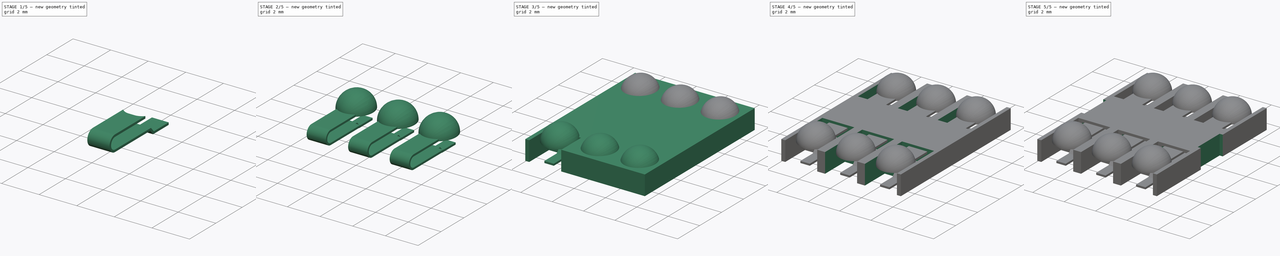
[diagram: build sequence overview — one tinted view per stage of 5, left to right]
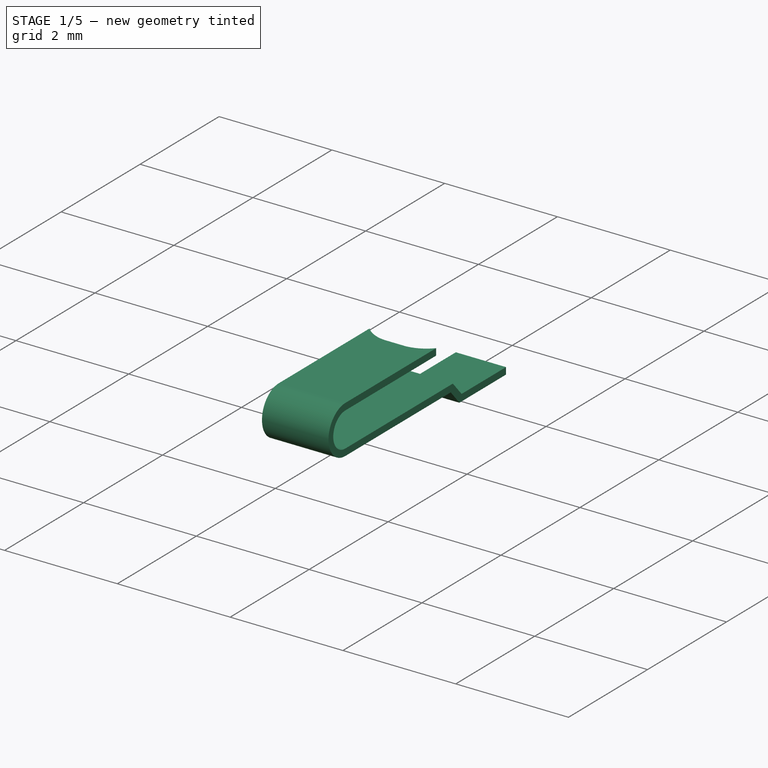
[diagram: stage 1 of 5 — iso view after this stage's code; geometry added in this stage tinted green]
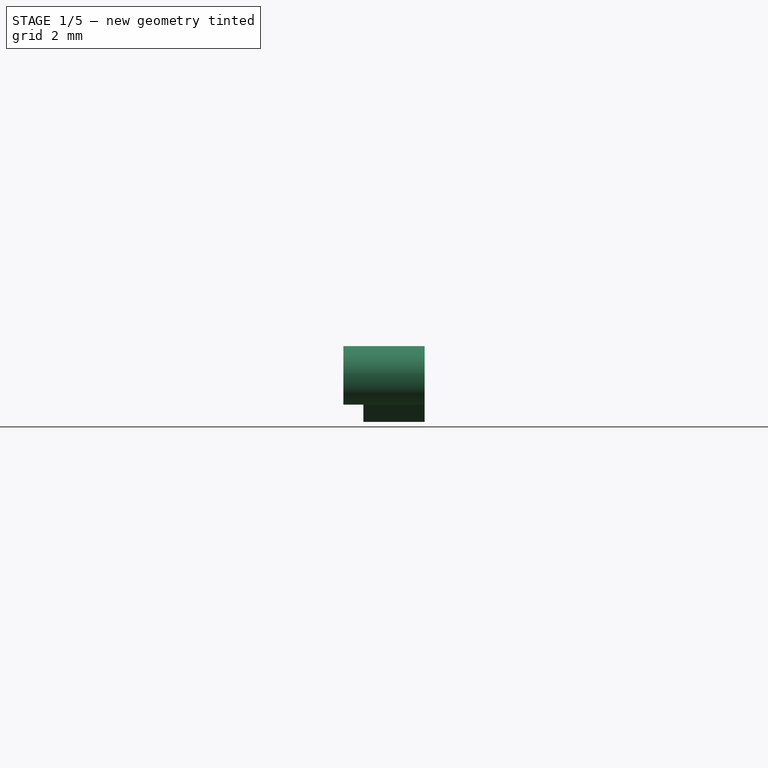
[diagram: stage 1 of 5 — front view after this stage's code; geometry added in this stage tinted green]
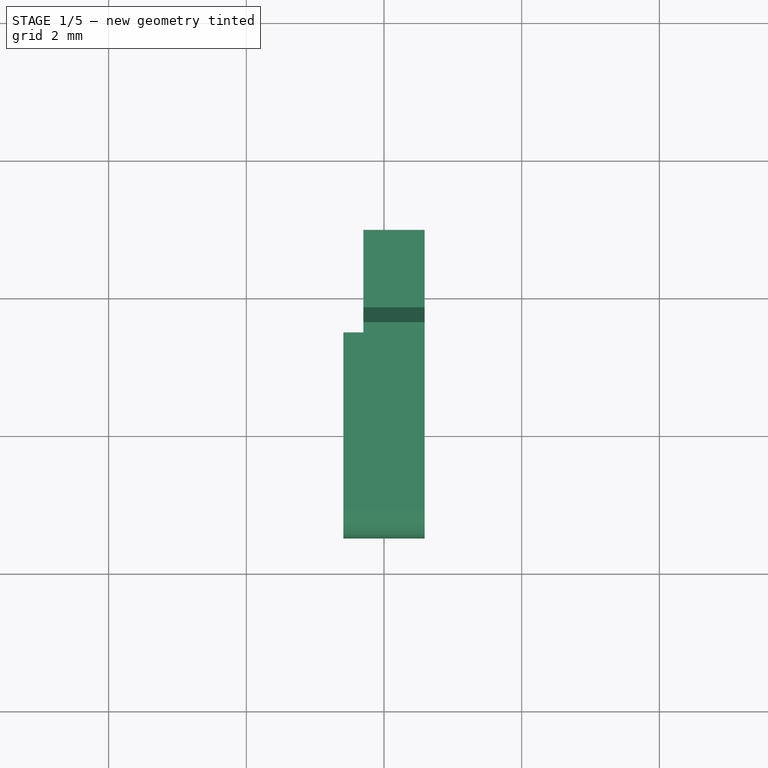
[diagram: stage 1 of 5 — top view after this stage's code; geometry added in this stage tinted green]
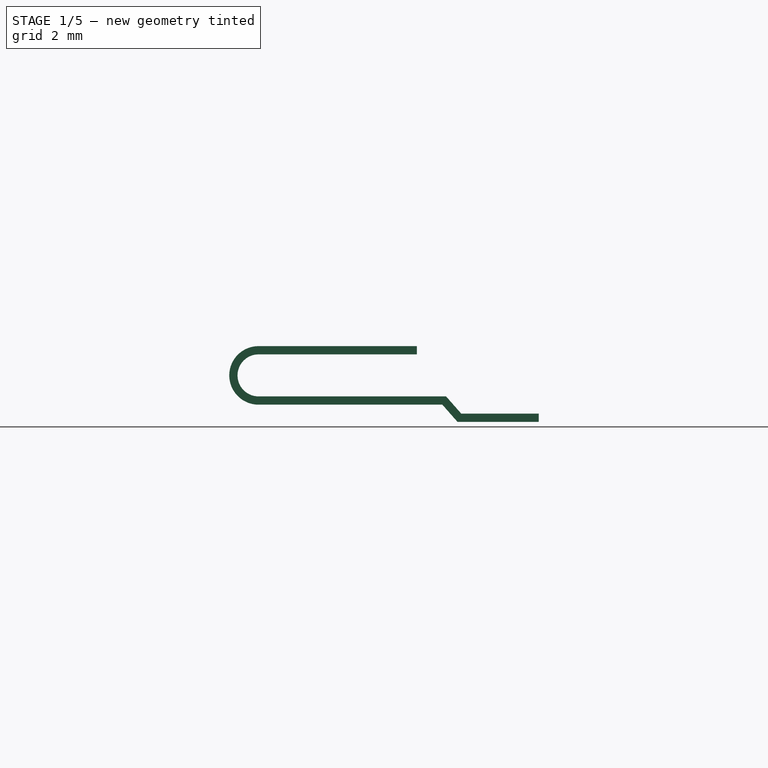
[diagram: stage 1 of 5 — right view after this stage's code; geometry added in this stage tinted green]
FCSTD DOCUMENT  (FreeCAD 1.0R38641 +468 (Git))
Label: 475500001
License: All rights reserved
objects: Sketcher::SketchObject×9, PartDesign::Mirrored×6, PartDesign::Pocket×5, PartDesign::Pad×3, PartDesign::LinearPattern×3, PartDesign::MultiTransform×3, PartDesign::Body×2, Spreadsheet::Sheet×1, PartDesign::Revolution×1, Part::FeaturePython×1, Part::Mirroring×1, Part::Compound×1
note: 73 computed .brp shape members not serialized (recipe doc carries the construction recipe); baked Part::Feature solids carry a one-line shape summary decoded from their .brp

FEATURE [PartDesign::Body] Body
  AllowCompound = false
  Group = -> [Sketch,Pad,Sketch001,Pocket,MultiTransform,LinearPattern,Mirrored,Sketch002,Pocket001,MultiTransform001,LinearPattern001,Mirrored001,Sketch003,Pocket002,MultiTransform002,LinearPattern002,Mirrored002,Sketch005,Pocket003,Mirrored003]
  Origin = -> Origin
  Placement = pos=(0,0,0.05) rot=(0,0,1;0rad)
  Tip = -> Mirrored003
FEATURE [Sketcher::SketchObject] Sketch006
  ArcFitTolerance = 0
  AttachmentSupport = -> [XY_Plane001]
  FullyConstrained = true
  MakeInternals = false
  MapMode = 5
  expr: Constraints[13] = <<Master>>.thick
  expr: Constraints[6] = <<Master>>.opening
  sketch-geometry (21):
    g0: ArcOfEllipse CenterX=0 CenterY=0 CenterZ=0 NormalX=0 NormalY=0 NormalZ=1 MajorRadius=1.09 MinorRadius=1.02 AngleXU=-1.5708 StartAngle=0 EndAngle=3.14159
    g1: LineSegment [constr] StartX=0 StartY=-1.09 StartZ=0 EndX=0 EndY=1.09 EndZ=0
    g2: LineSegment [constr] StartX=1.02 StartY=0 StartZ=0 EndX=-1.02 EndY=0 EndZ=0
    g3: GeomPoint [constr] X=0 Y=-0.384318 Z=0
    g4: GeomPoint [constr] X=0 Y=0.384318 Z=0
    g5: LineSegment StartX=1e-16 StartY=-1.09 StartZ=0 EndX=1e-16 EndY=-0.97 EndZ=0
    g6: LineSegment StartX=0 StartY=0.97 StartZ=0 EndX=0 EndY=1.09 EndZ=0
    g7: LineSegment [constr] StartX=0.9 StartY=0 StartZ=0 EndX=1.02 EndY=0 EndZ=0
    g8: LineSegment [constr] StartX=0 StartY=0.97 StartZ=0 EndX=0.9 EndY=0.97 EndZ=0
    g9: LineSegment [constr] StartX=0.9 StartY=0.97 StartZ=0 EndX=0.9 EndY=0 EndZ=0
    g10: LineSegment [constr] StartX=0.9 StartY=0 StartZ=0 EndX=0.9 EndY=-0.97 EndZ=0
    g11: LineSegment [constr] StartX=1e-16 StartY=-0.97 StartZ=0 EndX=0.9 EndY=-0.97 EndZ=0
    g12: BSplineCurve PolesCount=5 KnotsCount=3 Degree=2 IsPeriodic=0
    g13-g17: Circle [constr] x5 (B-spline internal-alignment scaffolding for g12; pole/knot coordinates omitted)
    g18: GeomPoint [constr] X=0 Y=0.97 Z=0
    g19: GeomPoint [constr] X=0.9 Y=0 Z=0
    g20: GeomPoint [constr] X=0 Y=-0.97 Z=0
  constraints (44):
    c: InternalAlignment(g1-g4 -> g0) x4
    c: Vertical(g1)
    c: DistanceY(g1,g1) = 2.18
    c: DistanceX(g2,g2) = 2.04
    c: Coincident(g5,g0)
    c: Coincident(g6,g0)
    c: Vertical(g6)
    c: Vertical(g5)
    c: Coincident(g7,g2)
    c: Equal(g7,g5)
    c: DistanceY(g6,g6) = 0.12
    c: PointOnObject(g0,g-2)
    c: PointOnObject(g0,g-2)
    c: Coincident(g8,g6)
    c: Horizontal(g8)
    c: Coincident(g9,g8)
    c: Coincident(g9,g7)
    c: Coincident(g10,g7)
    c: Coincident(g11,g5)
    c: Coincident(g11,g10)
    c: Vertical(g9)
    c: Vertical(g10)
    c: Horizontal(g11)
    c: Horizontal(g7)
    c: Equal(g9,g10)
    c: Coincident(g0,g-1)
    c: InternalAlignment(g13,g12)
    c: Weight(g13) = 1
    c: InternalAlignment(g14,g12)
    c: InternalAlignment(g15,g12)
    c: Equal(g15,g13)
    c: InternalAlignment(g16,g12)
    c: InternalAlignment(g17,g12)
    c: Equal(g17,g13)
    c: InternalAlignment(g18,g12)
    c: InternalAlignment(g19,g12)
    c: InternalAlignment(g20,g12)
    c: Coincident(g15,g7)
    c: Coincident(g14,g8)
    c: Coincident(g12,g6)
    c: Coincident(g16,g10)
    c: Coincident(g12,g5)
    c: Equal(g16,g14)
    c: Weight(g14) = 0.707
FEATURE [Sketcher::SketchObject] Sketch007
  ArcFitTolerance = 0
  AttachmentSupport = -> [YZ_Plane001]
  FullyConstrained = true
  MakeInternals = false
  MapMode = 5
  Placement = pos=(0,0,0) rot=(0.57735,0.57735,0.57735;2.0944rad)
  expr: Constraints[17] = <<Master>>.thick
  expr: Constraints[40] = <<Master>>.bottom + <<Master>>.thick
  sketch-geometry (19):
    g0: LineSegment StartX=-0.97 StartY=0.12 StartZ=0 EndX=-3.07 EndY=0.12 EndZ=0
    g1: ArcOfCircle CenterX=-3.07 CenterY=-0.305 CenterZ=0 NormalX=0 NormalY=0 NormalZ=1 AngleXU=0 Radius=0.425 StartAngle=1.5708 EndAngle=4.71239
    g2: LineSegment StartX=-3.07 StartY=-0.73 StartZ=0 EndX=-0.4 EndY=-0.73 EndZ=0
    g3: LineSegment StartX=-0.4 StartY=-0.73 StartZ=0 EndX=-0.18 EndY=-0.98 EndZ=0
    g4: LineSegment StartX=-0.18 StartY=-0.98 StartZ=0 EndX=1 EndY=-0.98 EndZ=0
    g5: LineSegment StartX=1 StartY=-0.98 StartZ=0 EndX=1 EndY=-0.86 EndZ=0
    g6: LineSegment StartX=1 StartY=-0.86 StartZ=0 EndX=-0.125752 EndY=-0.86 EndZ=0
    g7: LineSegment StartX=-0.125752 StartY=-0.86 StartZ=0 EndX=-0.345752 EndY=-0.61 EndZ=0
    g8: LineSegment StartX=-0.345752 StartY=-0.61 StartZ=0 EndX=-3.07 EndY=-0.61 EndZ=0
    g9: LineSegment StartX=-3.07 StartY=0 StartZ=0 EndX=-0.97 EndY=0 EndZ=0
    g10: LineSegment StartX=-0.97 StartY=0 StartZ=0 EndX=-0.97 EndY=0.12 EndZ=0
    g11: ArcOfCircle CenterX=-3.07 CenterY=-0.305 CenterZ=0 NormalX=0 NormalY=0 NormalZ=1 AngleXU=0 Radius=0.305 StartAngle=1.5708 EndAngle=4.71239
    g12: LineSegment [constr] StartX=-0.125752 StartY=-0.86 StartZ=0 EndX=-0.125752 EndY=-0.98 EndZ=0
    g13: LineSegment [constr] StartX=-0.4 StartY=-0.73 StartZ=0 EndX=-0.309914 EndY=-0.650725 EndZ=0
    g14: LineSegment [constr] StartX=-3.07 StartY=-0.61 StartZ=0 EndX=-3.07 EndY=-0.73 EndZ=0
    g15: LineSegment [constr] StartX=-3.07 StartY=0 StartZ=0 EndX=-3.07 EndY=0.12 EndZ=0
    g16: LineSegment [constr] StartX=-3.07 StartY=0 StartZ=0 EndX=-3.07 EndY=-0.305 EndZ=0
    g17: LineSegment [constr] StartX=-3.07 StartY=-0.305 StartZ=0 EndX=-3.07 EndY=-0.61 EndZ=0
    g18: LineSegment [constr] StartX=-3.07 StartY=-0.305 StartZ=0 EndX=-3.495 EndY=-0.305 EndZ=0
  constraints (54):
    c: Horizontal(g0)
    c: Coincident(g1,g0)
    c: Horizontal(g2)
    c: Coincident(g2,g3)
    c: Coincident(g3,g4)
    c: Horizontal(g4)
    c: Coincident(g4,g5)
    c: Coincident(g5,g6)
    c: Horizontal(g6)
    c: Coincident(g6,g7)
    c: Coincident(g7,g8)
    c: Horizontal(g8)
    c: Horizontal(g9)
    c: Coincident(g9,g10)
    c: Coincident(g10,g0)
    c: Vertical(g10)
    c: Vertical(g5)
    c: DistanceY(g5,g5) = 0.12
    c: Coincident(g11,g9)
    c: Coincident(g11,g8)
    c: Coincident(g12,g6)
    c: PointOnObject(g12,g4)
    c: Vertical(g12)
    c: Coincident(g13,g2)
    c: PointOnObject(g13,g7)
    c: Equal(g12,g13)
    c: Parallel(g3,g7)
    c: Coincident(g1,g2)
    c: Coincident(g14,g8)
    c: Coincident(g14,g1)
    c: Vertical(g14)
    c: Equal(g13,g14)
    c: Coincident(g11,g1)
    c: Coincident(g15,g9)
    c: Coincident(g15,g0)
    c: Vertical(g15)
    c: Equal(g15,g14)
    c: PointOnObject(g9,g-1)
    c: DistanceY(g1,g0) = 0.85
    c: DistanceX(g3,g4) = 1.18
    c: DistanceY(g3,g0) = 1.1
    c: Coincident(g16,g9)
    c: Coincident(g16,g1)
    c: Vertical(g16)
    c: Coincident(g17,g1)
    c: Coincident(g17,g8)
    c: Perpendicular(g3,g13)
    c: DistanceX(g0,g0) = 2.1
    c: DistanceX(g0,g-1) = 0.97
    c: Coincident(g18,g1)
    c: PointOnObject(g18,g1)
    c: Horizontal(g18)
    c: DistanceX(g18,g2) = 3.095
    c: DistanceX(g18,g4) = 4.495
FEATURE [PartDesign::Pad] Pad001
  Direction = (1,0,0)
  Length = 0.59
  Length2 = 0.59
  Placement = pos=(0,0,0) rot=(1,1,1;2.0944rad)
  Profile = -> Sketch007
  ReferenceAxis = -> Sketch007 [N_Axis]
  Suppressed = false
  Type = 4
  expr: Length = <<Master>>.pin_width / 2
  expr: Length2 = <<Master>>.pin_width / 2
FEATURE [Sketcher::SketchObject] Sketch008
  ArcFitTolerance = 0
  AttachmentSupport = -> [XY_Plane001]
  FullyConstrained = true
  MakeInternals = false
  MapMode = 5
  expr: Constraints[8] = <<Master>>.pin_width / 2
  sketch-geometry (3):
    g0: LineSegment StartX=-0.59 StartY=-0.77 StartZ=0 EndX=-0.59 EndY=-0.97 EndZ=0
    g1: LineSegment StartX=-0.59 StartY=-0.97 StartZ=0 EndX=-0.19 EndY=-0.97 EndZ=0
    g2: ArcOfCircle CenterX=-0.141002 CenterY=-0.372004 CenterZ=0 NormalX=0 NormalY=0 NormalZ=1 AngleXU=0 Radius=0.6 StartAngle=3.86685 EndAngle=4.63063
  constraints (10):
    c: Vertical(g0)
    c: Coincident(g1,g0)
    c: Horizontal(g1)
    c: Coincident(g2,g0)
    c: Coincident(g2,g1)
    c: DistanceY(g0,g0) = 0.2
    c: DistanceX(g1,g1) = 0.4
    c: Radius(g2) = 0.6
    c: DistanceX(g0,g-1) = 0.59
    c: DistanceY(g0,g-1) = 0.97
FEATURE [PartDesign::Pad] Pad002
  BaseFeature = -> Pad001
  Direction = (0,0,1)
  Length = 0.12
  Length2 = 10
  Placement = pos=(0,0,0) rot=(1,1,1;2.0944rad)
  Profile = -> Sketch008
  ReferenceAxis = -> Sketch008 [N_Axis]
  Suppressed = false
  Type = 0
  expr: Length = <<Master>>.thick
FEATURE [PartDesign::Mirrored] Mirrored004
  BaseFeature = -> Pad002
  MirrorPlane = -> Sketch008 [V_Axis]
  Originals = -> [Pad002]
  Placement = pos=(0,0,0) rot=(1,1,1;2.0944rad)
  Suppressed = false
  TransformMode = 0
FEATURE [Sketcher::SketchObject] Sketch009
  ArcFitTolerance = 0
  AttachmentSupport = -> [XY_Plane001]
  FullyConstrained = true
  MakeInternals = false
  MapMode = 5
  expr: Constraints[11] = <<Master>>.pin_width / 2
  sketch-geometry (4):
    g0: LineSegment StartX=-0.59 StartY=1 StartZ=0 EndX=-0.3 EndY=1 EndZ=0
    g1: LineSegment StartX=-0.3 StartY=1 StartZ=0 EndX=-0.3 EndY=-0.495 EndZ=0
    g2: LineSegment StartX=-0.3 StartY=-0.495 StartZ=0 EndX=-0.59 EndY=-0.495 EndZ=0
    g3: LineSegment StartX=-0.59 StartY=-0.495 StartZ=0 EndX=-0.59 EndY=1 EndZ=0
  constraints (12):
    c: Coincident(g0,g1)
    c: Coincident(g1,g2)
    c: Coincident(g2,g3)
    c: Coincident(g3,g0)
    c: Horizontal(g0)
    c: Horizontal(g2)
    c: Vertical(g1)
    c: Vertical(g3)
    c: DistanceY(g3,g3) = 1.495
    c: DistanceX(g0,g0) = 0.29
    c: DistanceY(g1,g-1) = 0.495
    c: DistanceX(g0,g-1) = 0.59
FEATURE [PartDesign::Pocket] Pocket004
  BaseFeature = -> Mirrored004
  Direction = (0,0,-1)
  Length = 5
  Length2 = 5
  Placement = pos=(0,0,0) rot=(1,1,1;2.0944rad)
  Profile = -> Sketch009
  ReferenceAxis = -> Sketch009 [N_Axis]
  Suppressed = false
  Type = 1
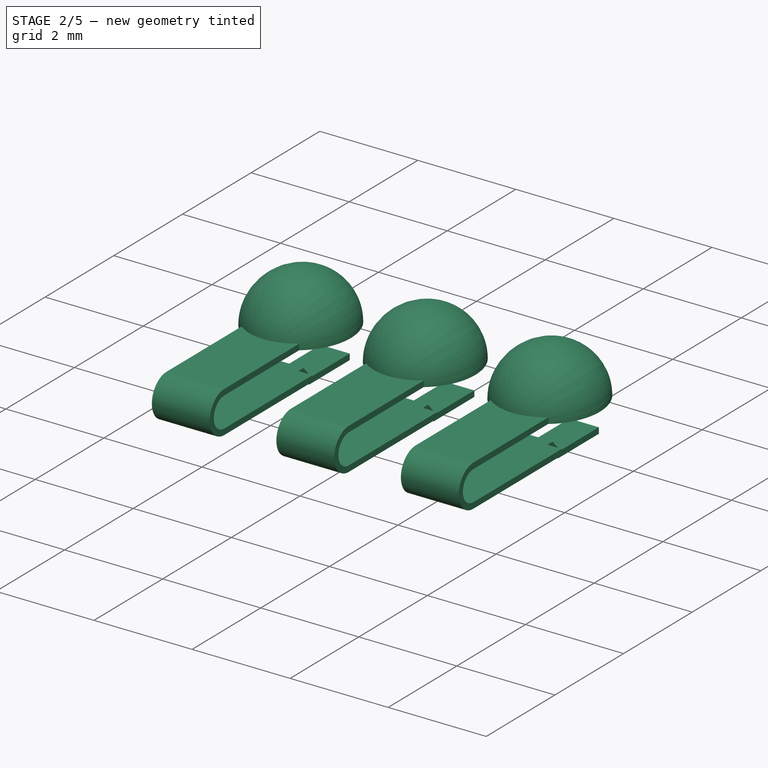
[diagram: stage 2 of 5 — iso view after this stage's code; geometry added in this stage tinted green]
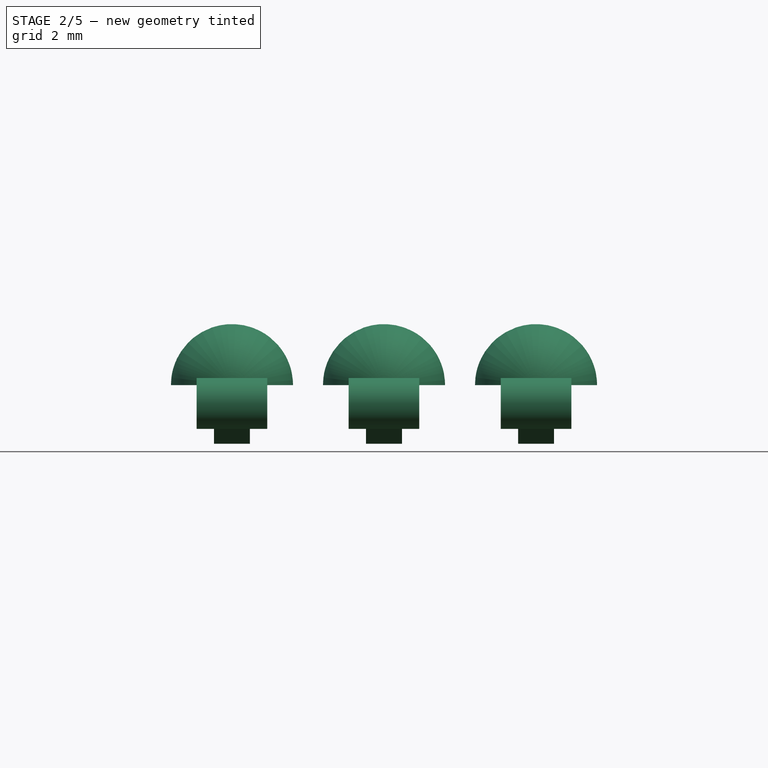
[diagram: stage 2 of 5 — front view after this stage's code; geometry added in this stage tinted green]
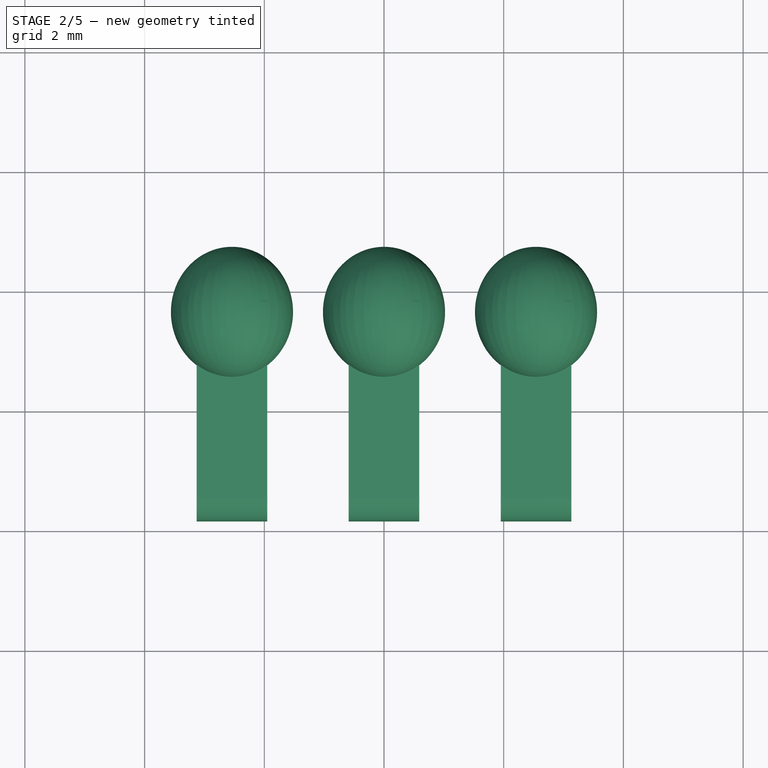
[diagram: stage 2 of 5 — top view after this stage's code; geometry added in this stage tinted green]
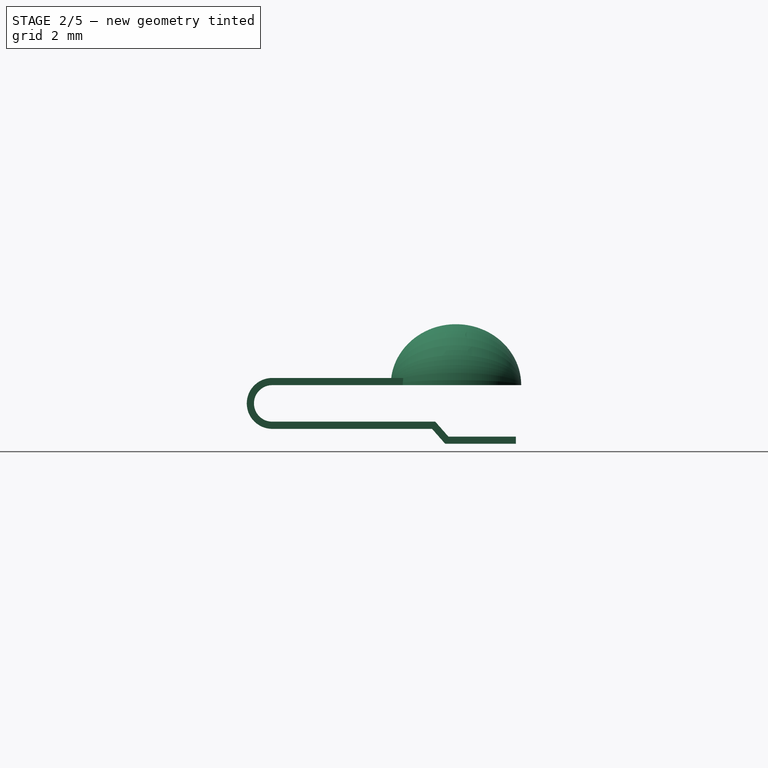
[diagram: stage 2 of 5 — right view after this stage's code; geometry added in this stage tinted green]
FEATURE [PartDesign::Mirrored] Mirrored005
  BaseFeature = -> Pocket004
  MirrorPlane = -> Sketch009 [V_Axis]
  Originals = -> [Pocket004]
  Placement = pos=(0,0,0) rot=(1,1,1;2.0944rad)
  Suppressed = false
  TransformMode = 0
FEATURE [PartDesign::Revolution] Revolution
  AllowMultiFace = false
  Angle = 180
  Angle2 = 60
  Axis = (0,1,0)
  Base = (0,0,0)
  BaseFeature = -> Mirrored005
  Placement = pos=(0,0,0) rot=(1,1,1;2.0944rad)
  Profile = -> Sketch006
  ReferenceAxis = -> Sketch006 [V_Axis]
  Refine = true
  Reversed = true
  Suppressed = false
  Type = 0
FEATURE [PartDesign::Body] Body001
  AllowCompound = false
  Group = -> [Sketch007,Pad001,Sketch008,Pad002,Mirrored004,Sketch006,Sketch009,Pocket004,Mirrored005,Revolution]
  Origin = -> Origin001
  Tip = -> Revolution
FEATURE [Part::FeaturePython] Array  # Draft array (typed FeaturePython)
  AlwaysSyncPlacement = false
  Angle = 360
  ArrayType = 0
  Axis = (0,0,1)
  Base = -> Body001
  Center = (0,0,0)
  Count = 3
  ExpandArray = false
  Fuse = false
  IntervalAxis = (0,0,0)
  IntervalX = (2.54,0,0)
  IntervalY = (0,100,0)
  IntervalZ = (0,0,100)
  NumberCircles = 3
  NumberPolar = 5
  NumberX = 3
  NumberY = 1
  NumberZ = 1
  Placement = pos=(-2.54,3.65,0.98) rot=(0,0,1;0rad)
  PlacementList = 3 placements: arithmetic series from (0,0,0) step (2.54,0,0) to (5.08,0,0)
  RadialDistance = 50
  ScaleList = (3) [(1,1,1),(1,1,1),(1,1,1)]
  Symmetry = 1
  TangentialDistance = 25
  expr: .Placement.Base.x = -<<Master>>.pin_spacing
  expr: .Placement.Base.z = <<Master>>.bottom
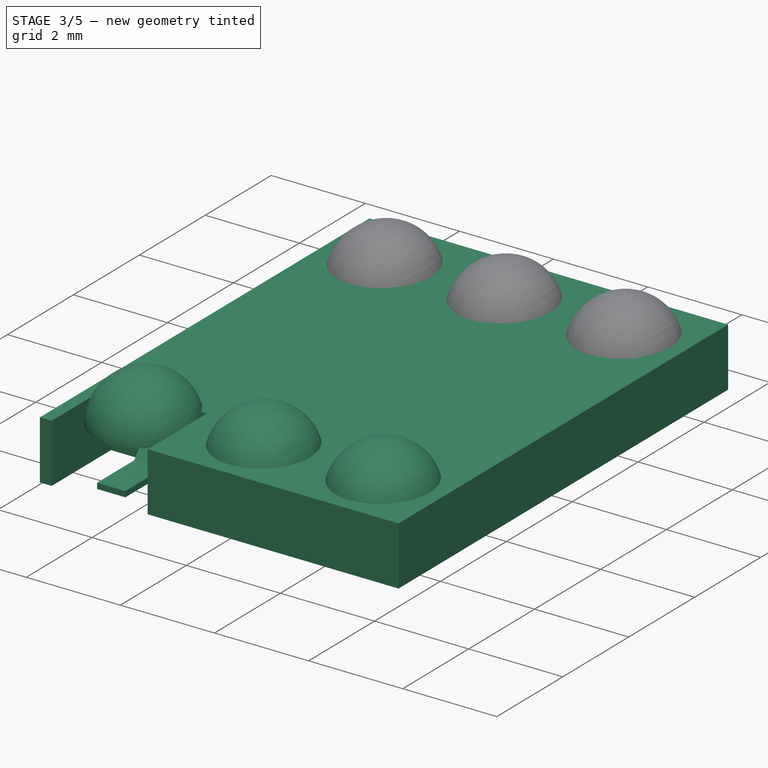
[diagram: stage 3 of 5 — iso view after this stage's code; geometry added in this stage tinted green]
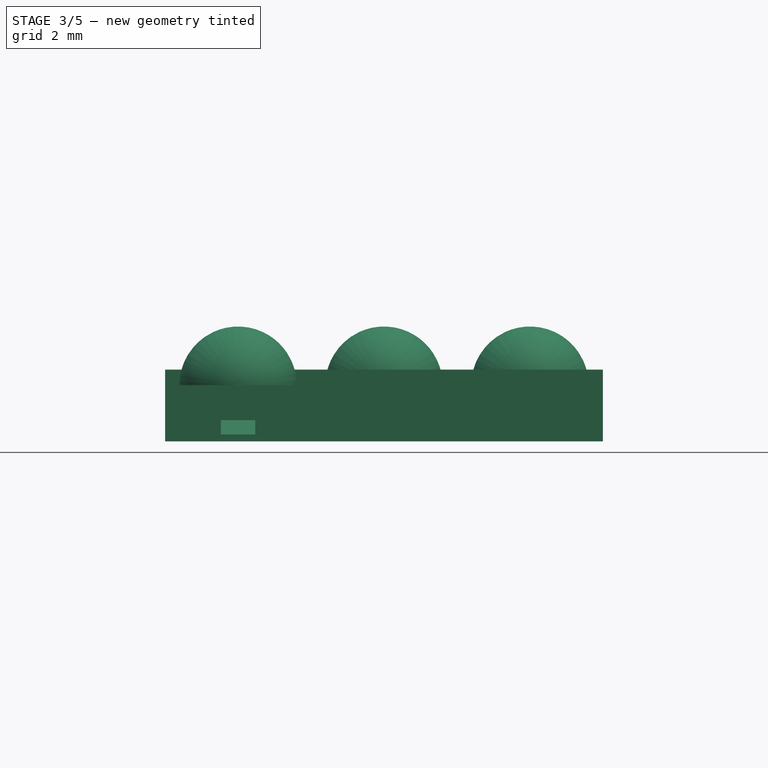
[diagram: stage 3 of 5 — front view after this stage's code; geometry added in this stage tinted green]
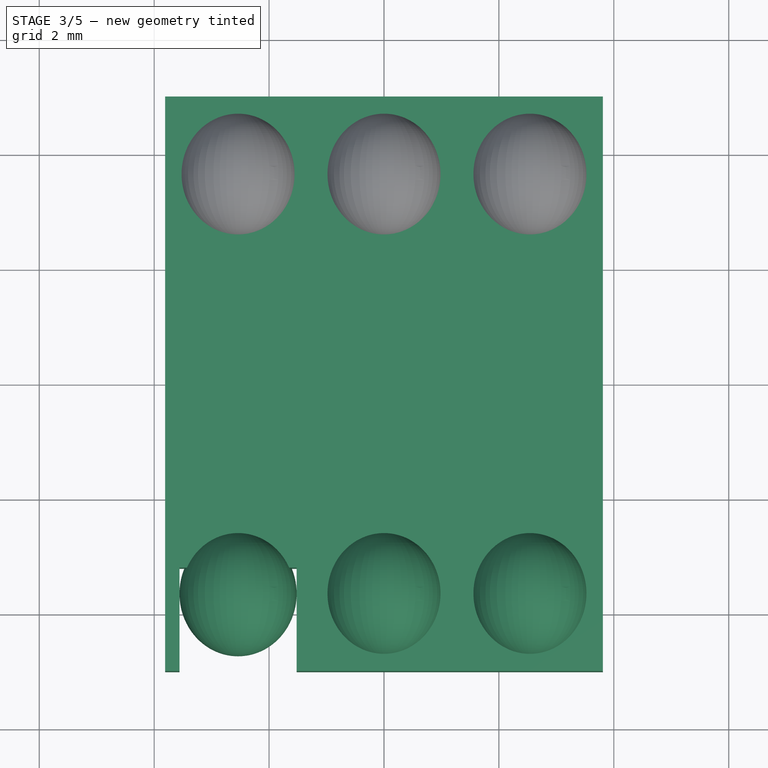
[diagram: stage 3 of 5 — top view after this stage's code; geometry added in this stage tinted green]
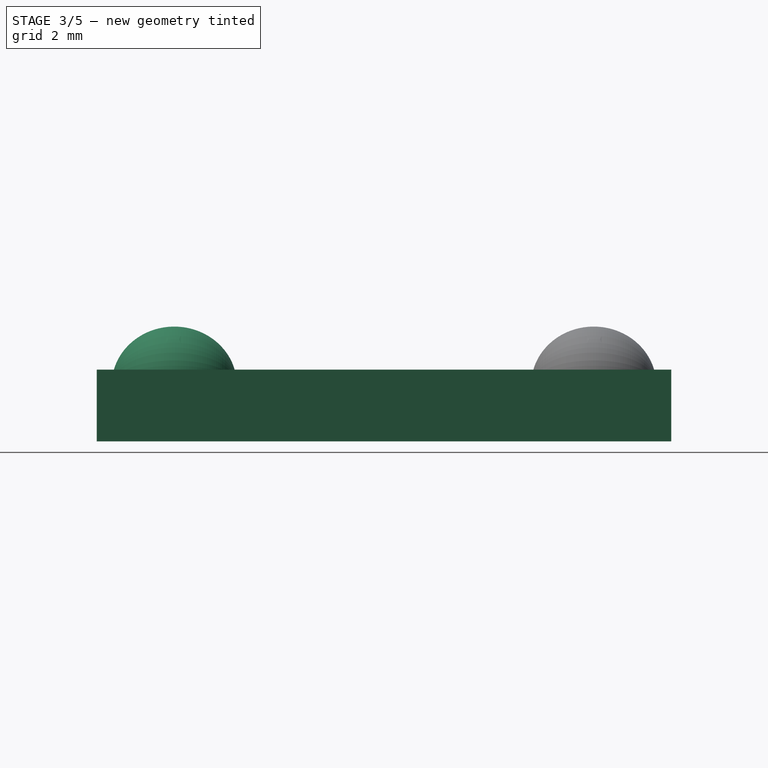
[diagram: stage 3 of 5 — right view after this stage's code; geometry added in this stage tinted green]
FEATURE [Spreadsheet::Sheet] Spreadsheet  label="Master"
  cells = A1='Body Constants; A2='length; B2(length)==10 mm; C2='Length of housing; A3='height; B3(height)==1.25 mm; C3='Height of housing; A4='width; B4(width)==7.62 mm; C4='Width of housing; A6='pins; B6(pins)=6; C6='Number of pins; A7='pin_spacing; B7(pin_spacing)==2.54 mm; C7='Pin spacing; A8='opening; B8(opening)==2.04 mm; C8='Pin opening; A10='Pin Constants; A11='pin_width; B11(pin_width)==0.59 mm * 2; C11='Width of pin; A12='thick; B12(thick)==0.12 mm; C12='Pin thickness; A13='bottom; B13(bottom)==1.1 mm - thick; C13='Pin bottom offset; A16='Calculated; A17='pins_per_side; B17(pins_per_side)==pins / 2; C17='Pins per side; A18='pin_pat_len; B18(pin_pat_len)==pin_spacing * (pins_per_side - 1); C18='Pin linear pattern length; A19='offset; B19(offset)==(width - pin_spacing * (pins_per_side - 1) - opening) / 2; C19='Pin opening offset from edge
FEATURE [PartDesign::Mirrored] Mirrored002
  MirrorPlane = -> XZ_Plane
  Suppressed = false
  TransformMode = 0
FEATURE [Sketcher::SketchObject] Sketch
  ArcFitTolerance = 0
  AttachmentSupport = -> [XY_Plane]
  FullyConstrained = true
  MakeInternals = false
  MapMode = 5
  expr: Constraints[6] = <<Master>>.width
  expr: Constraints[7] = <<Master>>.length
  sketch-geometry (4):
    g0: LineSegment StartX=-3.81 StartY=5 StartZ=0 EndX=3.81 EndY=5 EndZ=0
    g1: LineSegment StartX=3.81 StartY=5 StartZ=0 EndX=3.81 EndY=-5 EndZ=0
    g2: LineSegment StartX=3.81 StartY=-5 StartZ=0 EndX=-3.81 EndY=-5 EndZ=0
    g3: LineSegment StartX=-3.81 StartY=-5 StartZ=0 EndX=-3.81 EndY=5 EndZ=0
  constraints (10):
    c: Coincident(g0,g1)
    c: Coincident(g1,g2)
    c: Coincident(g2,g3)
    c: Coincident(g3,g0)
    c: Horizontal(g0)
    c: Vertical(g3)
    c: DistanceX(g2,g2) = 7.62
    c: DistanceY(g1,g1) = 10
    c: Symmetric(g0,g1,g-1)
    c: Symmetric(g2,g1,g-2)
FEATURE [PartDesign::Pad] Pad
  Direction = (0,0,1)
  Length = 1.25
  Length2 = 10
  Profile = -> Sketch
  ReferenceAxis = -> Sketch [N_Axis]
  Suppressed = false
  Type = 0
  expr: Length = <<Master>>.height
FEATURE [Sketcher::SketchObject] Sketch001
  ArcFitTolerance = 0
  AttachmentSupport = -> [XY_Plane]
  ExternalGeometry = -> [Pad]
  FullyConstrained = true
  MakeInternals = false
  MapMode = 5
  expr: Constraints[10] = <<Master>>.width / 2
  expr: Constraints[11] = <<Master>>.length / 2
  expr: Constraints[12] = <<Master>>.offset
  expr: Constraints[14] = <<Master>>.opening
  sketch-geometry (5):
    g0: LineSegment StartX=-3.56 StartY=-3.2 StartZ=0 EndX=-1.52 EndY=-3.2 EndZ=0
    g1: LineSegment StartX=-1.52 StartY=-3.2 StartZ=0 EndX=-1.52 EndY=-5 EndZ=0
    g2: LineSegment StartX=-1.52 StartY=-5 StartZ=0 EndX=-3.56 EndY=-5 EndZ=0
    g3: LineSegment StartX=-3.56 StartY=-5 StartZ=0 EndX=-3.56 EndY=-3.2 EndZ=0
    g4: LineSegment [constr] StartX=-3.56 StartY=-5 StartZ=0 EndX=-3.81 EndY=-5 EndZ=0
  constraints (15):
    c: Coincident(g0,g1)
    c: Coincident(g1,g2)
    c: Coincident(g2,g3)
    c: Coincident(g3,g0)
    c: Horizontal(g0)
    c: Horizontal(g2)
    c: Vertical(g1)
    c: Vertical(g3)
    c: Coincident(g4,g2)
    c: Horizontal(g4)
    c: DistanceX(g4,g-1) = 3.81
    c: DistanceY(g4,g-1) = 5
    c: DistanceX(g4,g4) = 0.25
    c: DistanceY(g1,g1) = 1.8
    c: DistanceX(g2,g2) = 2.04
FEATURE [PartDesign::LinearPattern] LinearPattern
  Direction = -> Sketch001 [H_Axis]
  Length = 5.08
  Mode = 0
  Occurrences = 3
  Offset = 2.54
  Suppressed = false
  TransformMode = 0
  expr: Length = <<Master>>.pin_pat_len
  expr: Occurrences = <<Master>>.pins_per_side
FEATURE [PartDesign::Mirrored] Mirrored
  MirrorPlane = -> Sketch001 [H_Axis]
  Suppressed = false
  TransformMode = 0
FEATURE [PartDesign::Pocket] Pocket
  BaseFeature = -> Pad
  Direction = (0,0,-1)
  Length = 5
  Length2 = 5
  Profile = -> Sketch001
  ReferenceAxis = -> Sketch001 [N_Axis]
  Reversed = true
  Suppressed = false
  Type = 1
FEATURE [Part::Mirroring] Part__Mirroring  label="Array (Mirror #1)"
  Base = (0,0,0)
  Normal = (0,1,0)
  Source = -> Array
FEATURE [Part::Compound] Compound
  Links = -> [Part__Mirroring,Array]
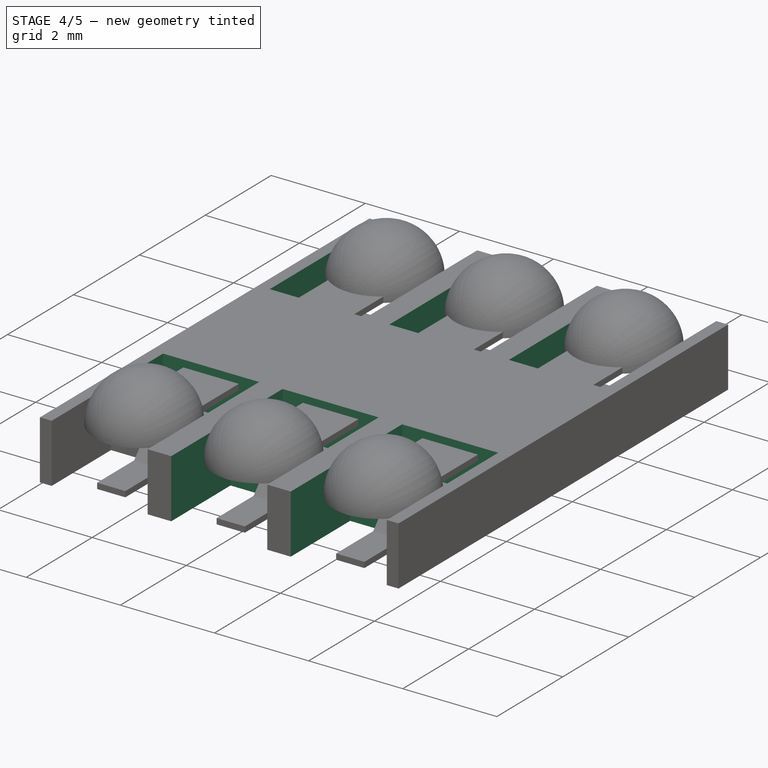
[diagram: stage 4 of 5 — iso view after this stage's code; geometry added in this stage tinted green]
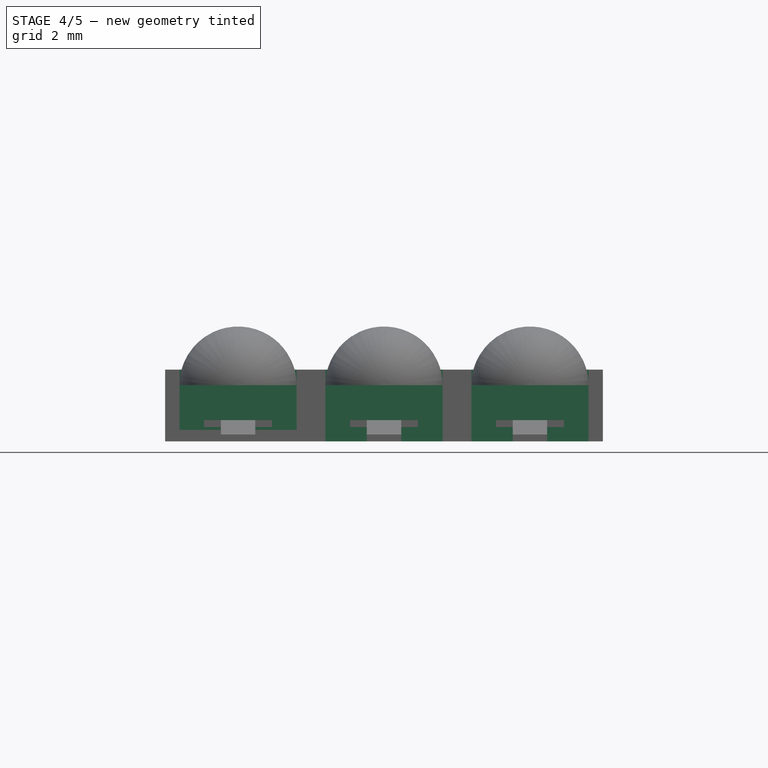
[diagram: stage 4 of 5 — front view after this stage's code; geometry added in this stage tinted green]
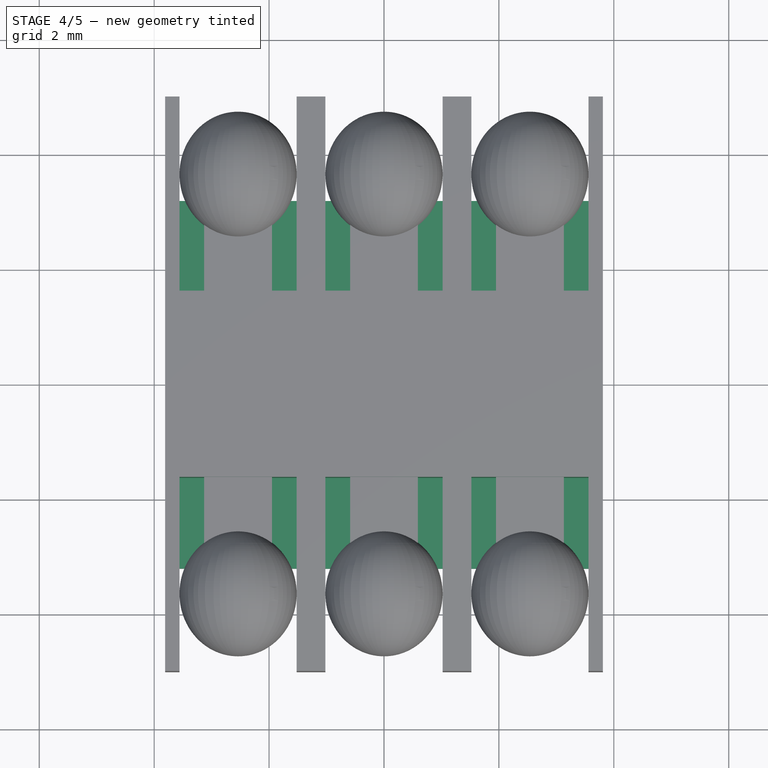
[diagram: stage 4 of 5 — top view after this stage's code; geometry added in this stage tinted green]
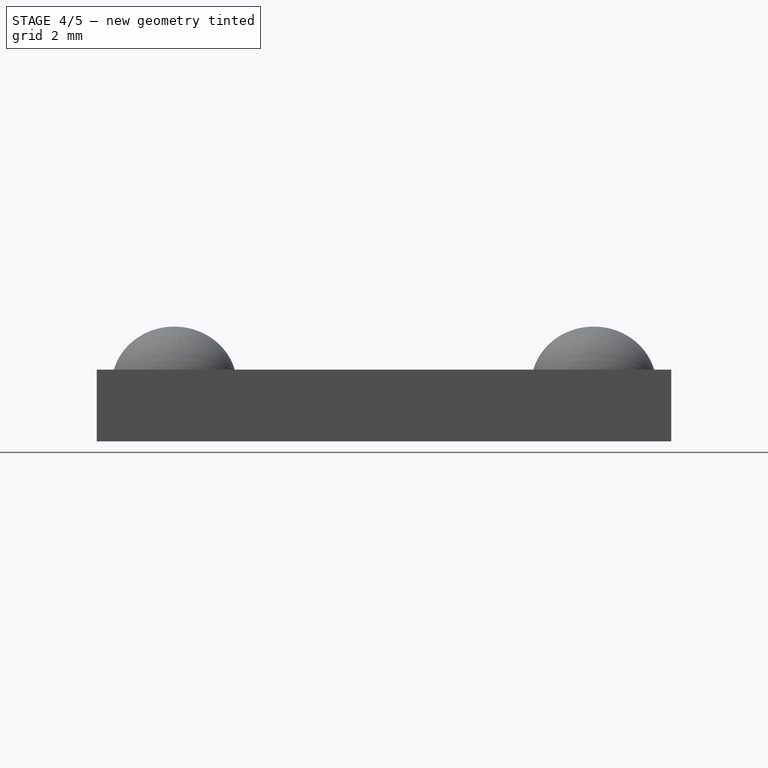
[diagram: stage 4 of 5 — right view after this stage's code; geometry added in this stage tinted green]
FEATURE [PartDesign::MultiTransform] MultiTransform
  BaseFeature = -> Pocket
  Originals = -> [Pocket]
  Suppressed = false
  TransformMode = 0
  Transformations = -> [LinearPattern,Mirrored]
FEATURE [Sketcher::SketchObject] Sketch002
  ArcFitTolerance = 0
  AttachmentOffset = pos=(0,0,1.25) rot=(0,0,1;0rad)
  AttachmentSupport = -> [XY_Plane]
  FullyConstrained = true
  MakeInternals = false
  MapMode = 5
  Placement = pos=(0,0,1.25) rot=(0,0,1;0rad)
  expr: .AttachmentOffset.Base.z = <<Master>>.height
  expr: Constraints[10] = <<Master>>.length / 2
  expr: Constraints[11] = <<Master>>.offset
  expr: Constraints[12] = <<Master>>.opening
  expr: Constraints[9] = <<Master>>.width / 2
  sketch-geometry (5):
    g0: LineSegment [constr] StartX=-3.81 StartY=-5 StartZ=0 EndX=-3.56 EndY=-5 EndZ=0
    g1: LineSegment StartX=-3.56 StartY=-5 StartZ=0 EndX=-1.52 EndY=-5 EndZ=0
    g2: LineSegment StartX=-1.52 StartY=-5 StartZ=0 EndX=-1.52 EndY=-1.62 EndZ=0
    g3: LineSegment StartX=-1.52 StartY=-1.62 StartZ=0 EndX=-3.56 EndY=-1.62 EndZ=0
    g4: LineSegment StartX=-3.56 StartY=-1.62 StartZ=0 EndX=-3.56 EndY=-5 EndZ=0
  constraints (15):
    c: Coincident(g1,g2)
    c: Coincident(g2,g3)
    c: Coincident(g3,g4)
    c: Coincident(g4,g1)
    c: Horizontal(g1)
    c: Horizontal(g3)
    c: Vertical(g2)
    c: Vertical(g4)
    c: Coincident(g1,g0)
    c: DistanceX(g0,g-1) = 3.81
    c: DistanceY(g0,g-1) = 5
    c: DistanceX(g0,g0) = 0.25
    c: DistanceX(g1,g1) = 2.04
    c: DistanceY(g2,g2) = 3.38
    c: Horizontal(g0)
FEATURE [PartDesign::LinearPattern] LinearPattern001
  Direction = -> Sketch002 [H_Axis]
  Length = 5.08
  Mode = 0
  Occurrences = 3
  Offset = 2.54
  Suppressed = false
  TransformMode = 0
  expr: Length = <<Master>>.pin_pat_len
  expr: Occurrences = <<Master>>.pins_per_side
FEATURE [PartDesign::Mirrored] Mirrored001
  MirrorPlane = -> Sketch002 [H_Axis]
  Suppressed = false
  TransformMode = 0
FEATURE [PartDesign::Pocket] Pocket001
  BaseFeature = -> MultiTransform
  Direction = (0,0,-1)
  Length = 1.05
  Length2 = 5
  Profile = -> Sketch002
  ReferenceAxis = -> Sketch002 [N_Axis]
  Suppressed = false
  Type = 0
  expr: Length = <<Master>>.height - 0.2 mm
FEATURE [PartDesign::MultiTransform] MultiTransform001
  BaseFeature = -> Pocket001
  Originals = -> [Pocket001]
  Suppressed = false
  TransformMode = 0
  Transformations = -> [LinearPattern001,Mirrored001]
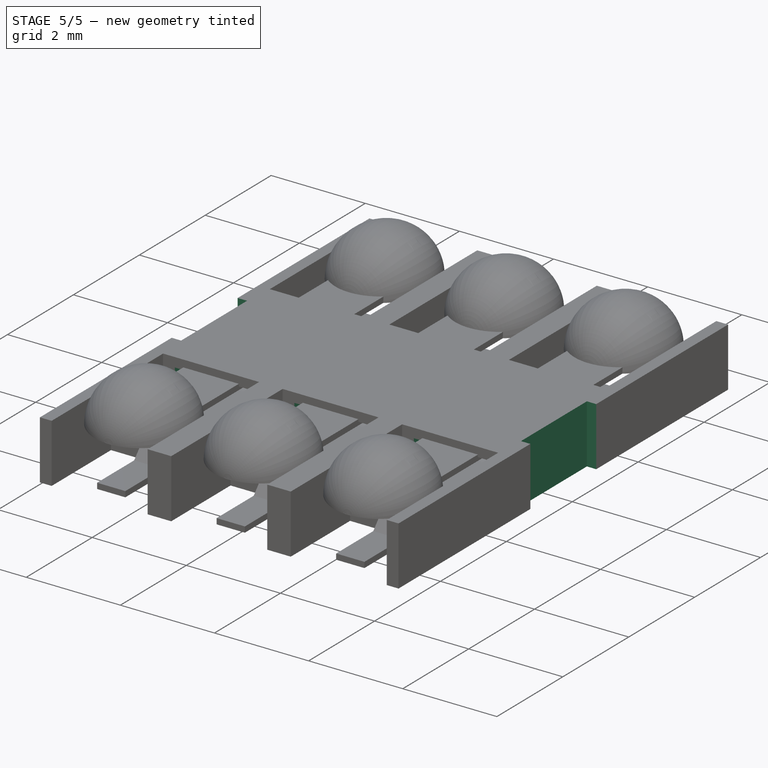
[diagram: stage 5 of 5 — iso view after this stage's code; geometry added in this stage tinted green]
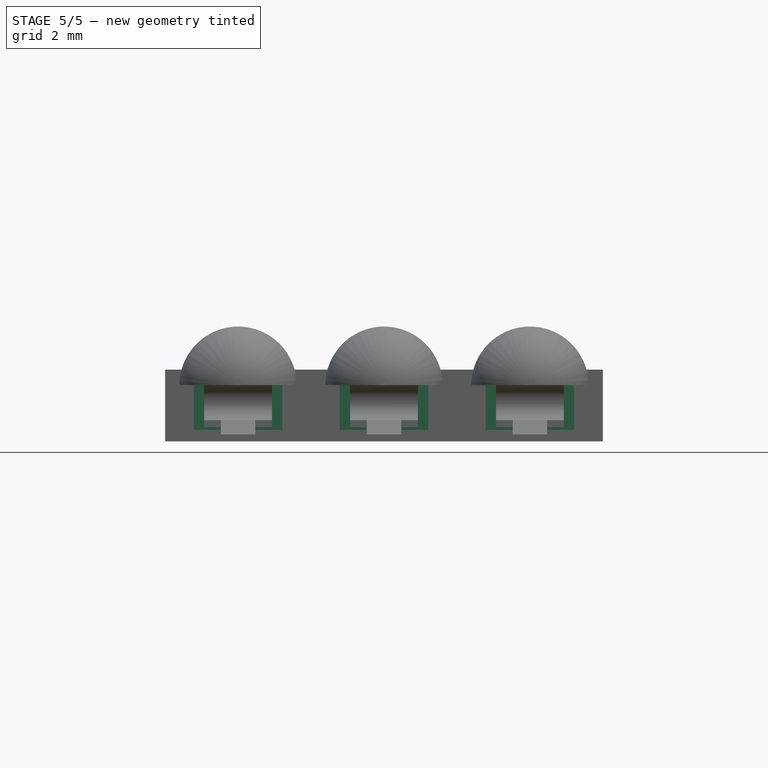
[diagram: stage 5 of 5 — front view after this stage's code; geometry added in this stage tinted green]
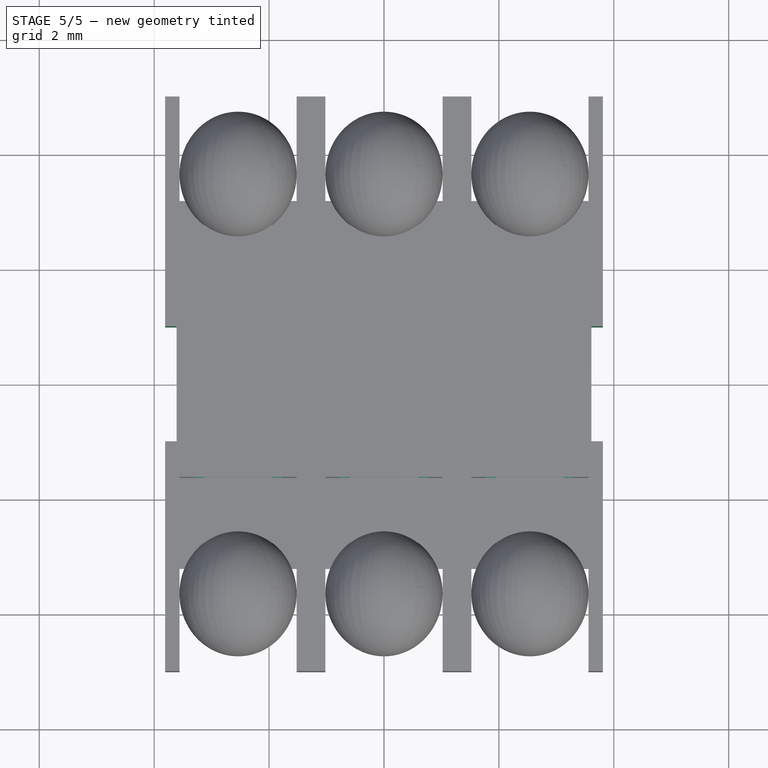
[diagram: stage 5 of 5 — top view after this stage's code; geometry added in this stage tinted green]
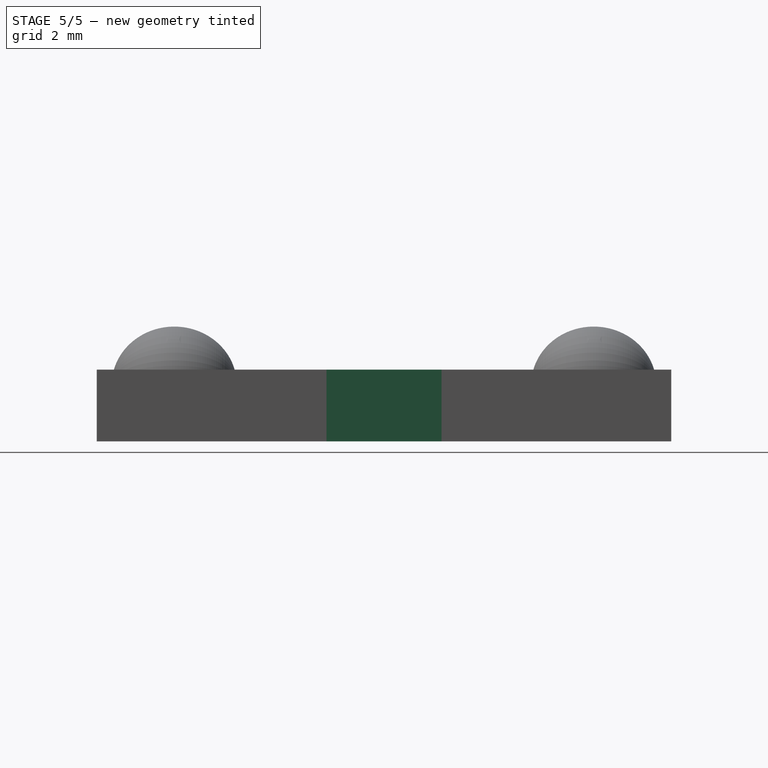
[diagram: stage 5 of 5 — right view after this stage's code; geometry added in this stage tinted green]
FEATURE [Sketcher::SketchObject] Sketch003
  ArcFitTolerance = 0
  AttachmentOffset = pos=(0,0,5) rot=(0,0,1;0rad)
  AttachmentSupport = -> [XZ_Plane]
  FullyConstrained = true
  MakeInternals = false
  MapMode = 5
  Placement = pos=(0,-5,1.1e-15) rot=(1,0,0;1.5708rad)
  expr: .AttachmentOffset.Base.z = <<Master>>.length / 2
  expr: Constraints[19] = <<Master>>.offset
  expr: Constraints[20] = <<Master>>.width / 2
  expr: Constraints[5] = <<Master>>.opening
  sketch-geometry (7):
    g0: LineSegment StartX=-3.31 StartY=1.05 StartZ=0 EndX=-1.77 EndY=1.05 EndZ=0
    g1: LineSegment StartX=-1.77 StartY=1.05 StartZ=0 EndX=-1.77 EndY=0.2 EndZ=0
    g2: LineSegment StartX=-1.77 StartY=0.2 StartZ=0 EndX=-3.31 EndY=0.2 EndZ=0
    g3: LineSegment StartX=-3.31 StartY=0.2 StartZ=0 EndX=-3.31 EndY=1.05 EndZ=0
    g4: LineSegment [constr] StartX=-1.52 StartY=0.2 StartZ=0 EndX=-1.77 EndY=0.2 EndZ=0
    g5: LineSegment [constr] StartX=-3.56 StartY=0.2 StartZ=0 EndX=-3.31 EndY=0.2 EndZ=0
    g6: LineSegment [constr] StartX=-3.56 StartY=0.2 StartZ=0 EndX=-3.81 EndY=0.2 EndZ=0
  constraints (21):
    c: Coincident(g2,g3)
    c: Coincident(g0,g3)
    c: Coincident(g1,g2)
    c: Coincident(g0,g1)
    c: DistanceX(g0,g0) = 1.54
    c: DistanceX(g5,g4) = 2.04
    c: Vertical(g1)
    c: Vertical(g3)
    c: Horizontal(g0)
    c: Horizontal(g2)
    c: Horizontal(g5)
    c: Horizontal(g4)
    c: Coincident(g5,g2)
    c: Coincident(g1,g4)
    c: Equal(g5,g4)
    c: DistanceY(g-1,g4) = 0.2
    c: DistanceY(g4,g0) = 0.85
    c: Coincident(g6,g5)
    c: Horizontal(g6)
    c: DistanceX(g6,g6) = 0.25
    c: DistanceX(g6,g-1) = 3.81
FEATURE [PartDesign::LinearPattern] LinearPattern002
  Direction = -> Sketch003 [H_Axis]
  Length = 5.08
  Mode = 0
  Occurrences = 3
  Offset = 2.54
  Suppressed = false
  TransformMode = 0
  expr: Length = <<Master>>.pin_pat_len
  expr: Occurrences = <<Master>>.pins_per_side
FEATURE [PartDesign::Pocket] Pocket002
  BaseFeature = -> MultiTransform001
  Direction = (0,1,-2e-16)
  Length = 4.9
  Length2 = 5
  Profile = -> Sketch003
  ReferenceAxis = -> Sketch003 [N_Axis]
  Suppressed = false
  Type = 0
FEATURE [PartDesign::MultiTransform] MultiTransform002
  BaseFeature = -> Pocket002
  Originals = -> [Pocket002]
  Suppressed = false
  TransformMode = 0
  Transformations = -> [LinearPattern002,Mirrored002]
FEATURE [Sketcher::SketchObject] Sketch005
  ArcFitTolerance = 0
  AttachmentSupport = -> [XY_Plane]
  FullyConstrained = true
  MakeInternals = false
  MapMode = 2
  expr: Constraints[10] = <<Master>>.width / 2
  sketch-geometry (4):
    g0: LineSegment StartX=-3.81 StartY=1 StartZ=0 EndX=-3.61 EndY=1 EndZ=0
    g1: LineSegment StartX=-3.61 StartY=1 StartZ=0 EndX=-3.61 EndY=-1 EndZ=0
    g2: LineSegment StartX=-3.61 StartY=-1 StartZ=0 EndX=-3.81 EndY=-1 EndZ=0
    g3: LineSegment StartX=-3.81 StartY=-1 StartZ=0 EndX=-3.81 EndY=1 EndZ=0
  constraints (11):
    c: Coincident(g0,g1)
    c: Coincident(g1,g2)
    c: Coincident(g2,g3)
    c: Coincident(g3,g0)
    c: Horizontal(g0)
    c: Horizontal(g2)
    c: Vertical(g1)
    c: DistanceY(g3,g3) = 2
    c: DistanceX(g2,g2) = 0.2
    c: Symmetric(g0,g2,g-1)
    c: DistanceX(g0,g-1) = 3.81
FEATURE [PartDesign::Pocket] Pocket003
  BaseFeature = -> MultiTransform002
  Direction = (0,0,-1)
  Length = 5
  Length2 = 5
  Profile = -> Sketch005
  ReferenceAxis = -> Sketch005 [N_Axis]
  Reversed = true
  Suppressed = false
  Type = 1
FEATURE [PartDesign::Mirrored] Mirrored003
  BaseFeature = -> Pocket003
  MirrorPlane = -> Sketch005 [V_Axis]
  Originals = -> [Pocket003]
  Refine = true
  Suppressed = false
  TransformMode = 0
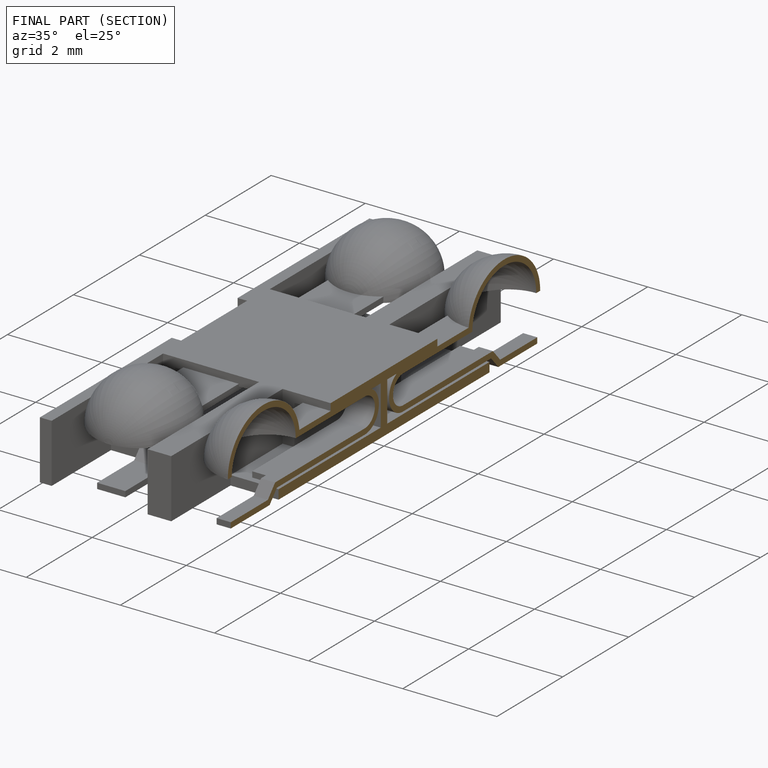
[diagram: finished part — half-section view (interior)]
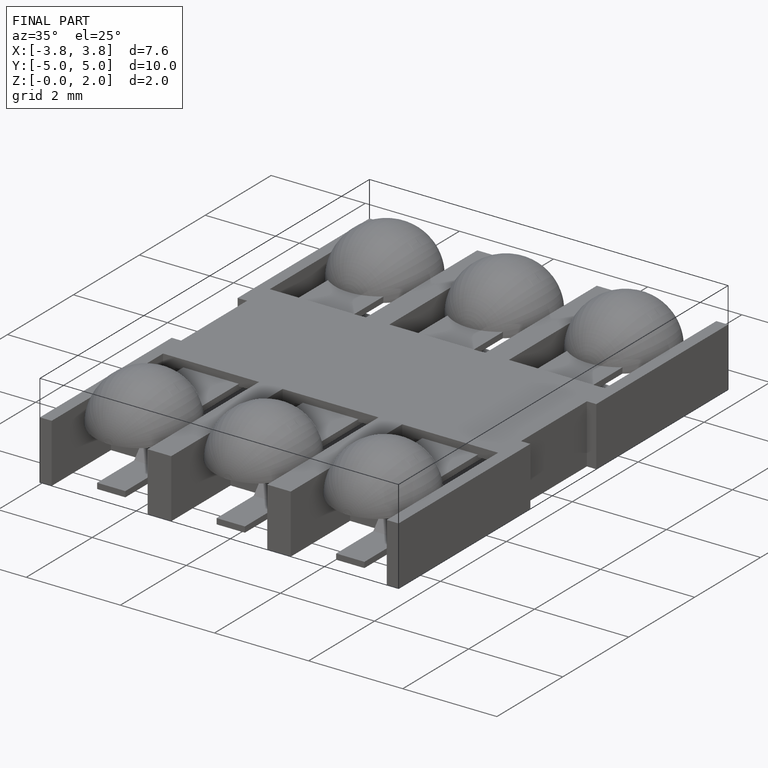
[diagram: finished part — iso view with bounding-box wireframe]
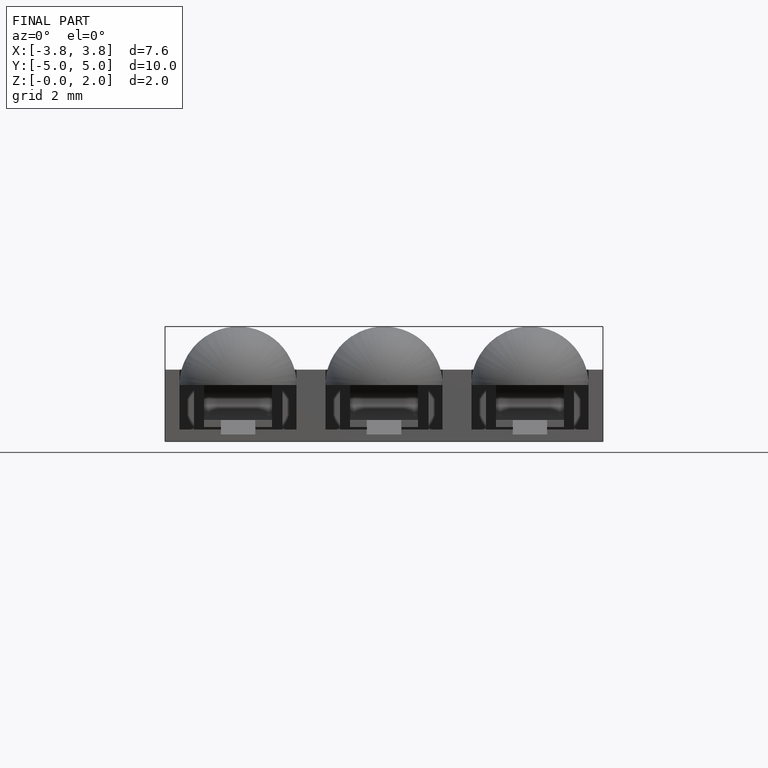
[diagram: finished part — front view with bounding-box wireframe]
